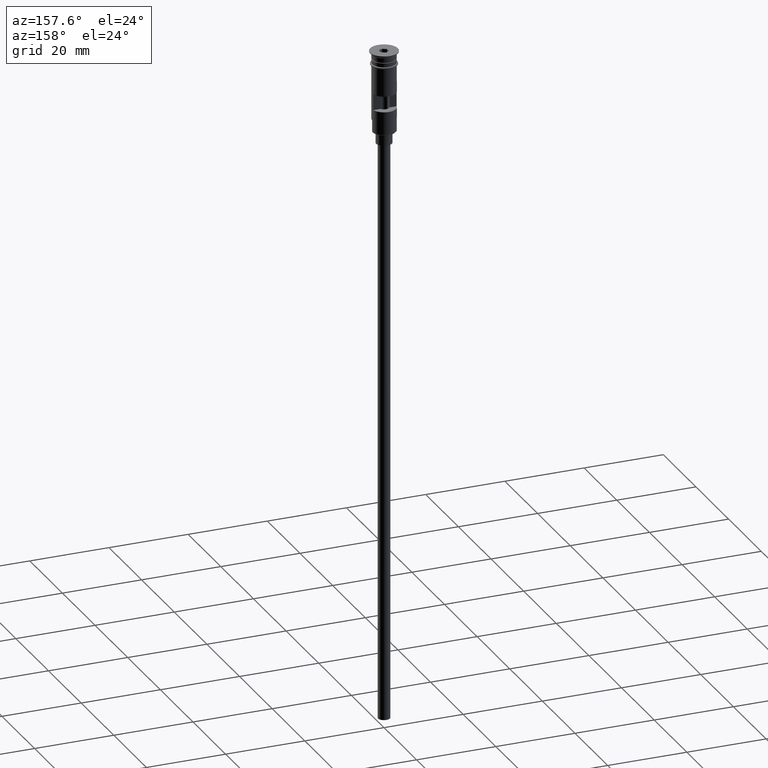
[diagram: clean part render]
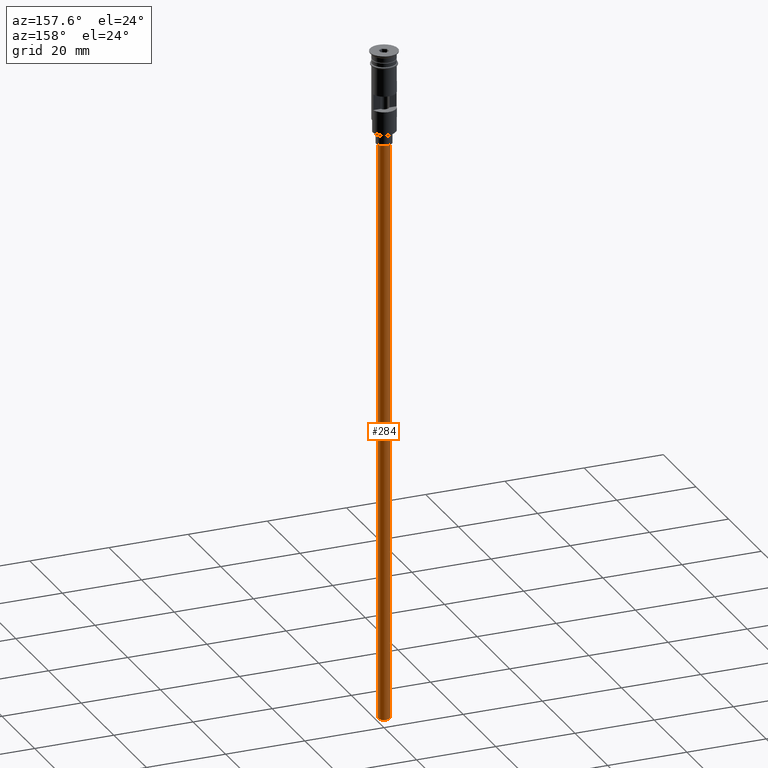
[diagram: same view with one face highlighted and labeled with its STEP entity id]
A machine part, auxiliary view. The second image highlights one B-rep face of the part: STEP entity #284.
In plain terms, the highlighted cylindrical surface (edge-blend (fillet) strip) has radius 1.5 mm, axis along (-0, -0, 1).
Its self-contained STEP definition (entity closure, byte-faithful):
#71 = VERTEX_POINT ( 'NONE', #738 ) ;
#81 = LINE ( 'NONE', #328, #475 ) ;
#201 = CARTESIAN_POINT ( 'NONE',  ( 0.000000000000000000, 0.000000000000000000, -170.4999999999999716 ) ) ;
#205 = VERTEX_POINT ( 'NONE', #293 ) ;
#214 = AXIS2_PLACEMENT_3D ( 'NONE', #201, #300, #813 ) ;
#269 = CARTESIAN_POINT ( 'NONE',  ( 1.500000000000000222, 0.000000000000000000, -170.4999999999999716 ) ) ;
#284 = ADVANCED_FACE ( 'NONE', ( #1099 ), #337, .T. ) ;
#293 = CARTESIAN_POINT ( 'NONE',  ( 1.500000000000000222, 0.000000000000000000, -23.50000000000000000 ) ) ;
#300 = DIRECTION ( 'NONE',  ( 0.000000000000000000, 0.000000000000000000, -1.000000000000000000 ) ) ;
#313 = VECTOR ( 'NONE', #511, 1000.000000000000000 ) ;
#318 = DIRECTION ( 'NONE',  ( -1.000000000000000000, 0.000000000000000000, 0.000000000000000000 ) ) ;
#328 = CARTESIAN_POINT ( 'NONE',  ( -1.500000000000000222, 1.836970198721030181E-16, -170.4999999999999716 ) ) ;
#337 = CYLINDRICAL_SURFACE ( 'NONE', #413, 1.500000000000000222 ) ;
#355 = EDGE_CURVE ( 'NONE', #71, #205, #631, .T. ) ;
#368 = CIRCLE ( 'NONE', #214, 1.500000000000000222 ) ;
#413 = AXIS2_PLACEMENT_3D ( 'NONE', #1335, #1216, #1090 ) ;
#475 = VECTOR ( 'NONE', #1292, 1000.000000000000000 ) ;
#511 = DIRECTION ( 'NONE',  ( -0.000000000000000000, -0.000000000000000000, 1.000000000000000000 ) ) ;
#631 = LINE ( 'NONE', #269, #313 ) ;
#653 = VERTEX_POINT ( 'NONE', #1065 ) ;
#658 = VERTEX_POINT ( 'NONE', #823 ) ;
#734 = CIRCLE ( 'NONE', #844, 1.500000000000000222 ) ;
#738 = CARTESIAN_POINT ( 'NONE',  ( 1.500000000000000222, 0.000000000000000000, -170.4999999999999716 ) ) ;
#805 = ORIENTED_EDGE ( 'NONE', *, *, #1243, .F. ) ;
#813 = DIRECTION ( 'NONE',  ( -1.000000000000000000, 0.000000000000000000, 0.000000000000000000 ) ) ;
#823 = CARTESIAN_POINT ( 'NONE',  ( -1.500000000000000222, 1.836970198721030181E-16, -170.4999999999999716 ) ) ;
#844 = AXIS2_PLACEMENT_3D ( 'NONE', #953, #1063, #318 ) ;
#906 = ORIENTED_EDGE ( 'NONE', *, *, #1184, .T. ) ;
#953 = CARTESIAN_POINT ( 'NONE',  ( 0.000000000000000000, 0.000000000000000000, -23.50000000000000000 ) ) ;
#959 = EDGE_LOOP ( 'NONE', ( #805, #906, #1594, #1524 ) ) ;
#1063 = DIRECTION ( 'NONE',  ( 0.000000000000000000, 0.000000000000000000, -1.000000000000000000 ) ) ;
#1065 = CARTESIAN_POINT ( 'NONE',  ( -1.500000000000000222, 1.836970198721030181E-16, -23.50000000000000000 ) ) ;
#1090 = DIRECTION ( 'NONE',  ( 1.000000000000000000, 0.000000000000000000, 0.000000000000000000 ) ) ;
#1099 = FACE_OUTER_BOUND ( 'NONE', #959, .T. ) ;
#1184 = EDGE_CURVE ( 'NONE', #658, #653, #81, .T. ) ;
#1216 = DIRECTION ( 'NONE',  ( -0.000000000000000000, -0.000000000000000000, 1.000000000000000000 ) ) ;
#1238 = EDGE_CURVE ( 'NONE', #653, #205, #734, .T. ) ;
#1243 = EDGE_CURVE ( 'NONE', #658, #71, #368, .T. ) ;
#1292 = DIRECTION ( 'NONE',  ( -0.000000000000000000, -0.000000000000000000, 1.000000000000000000 ) ) ;
#1335 = CARTESIAN_POINT ( 'NONE',  ( 0.000000000000000000, 0.000000000000000000, -170.4999999999999716 ) ) ;
#1524 = ORIENTED_EDGE ( 'NONE', *, *, #355, .F. ) ;
#1594 = ORIENTED_EDGE ( 'NONE', *, *, #1238, .T. ) ;